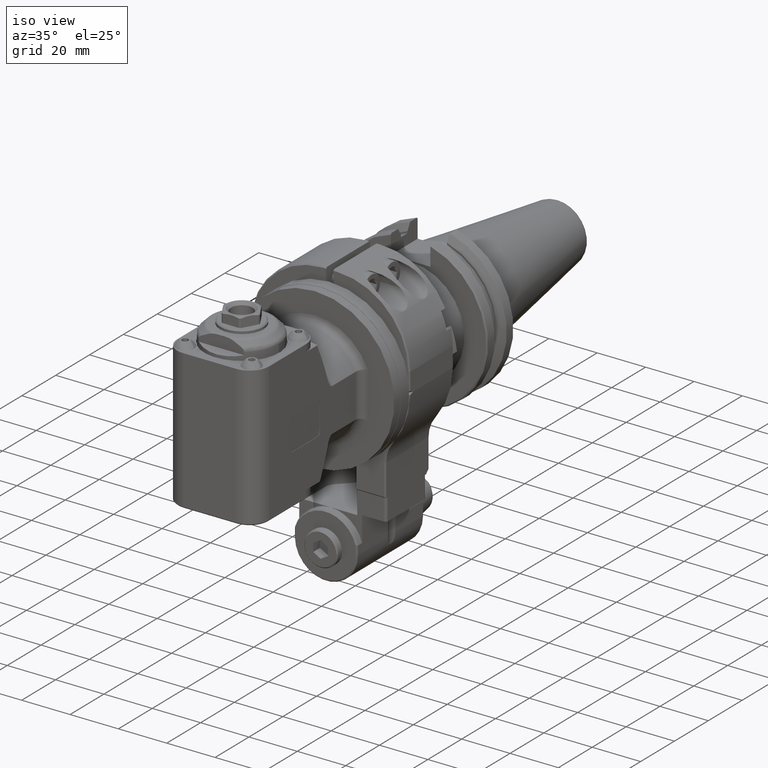
[diagram: clean part render]
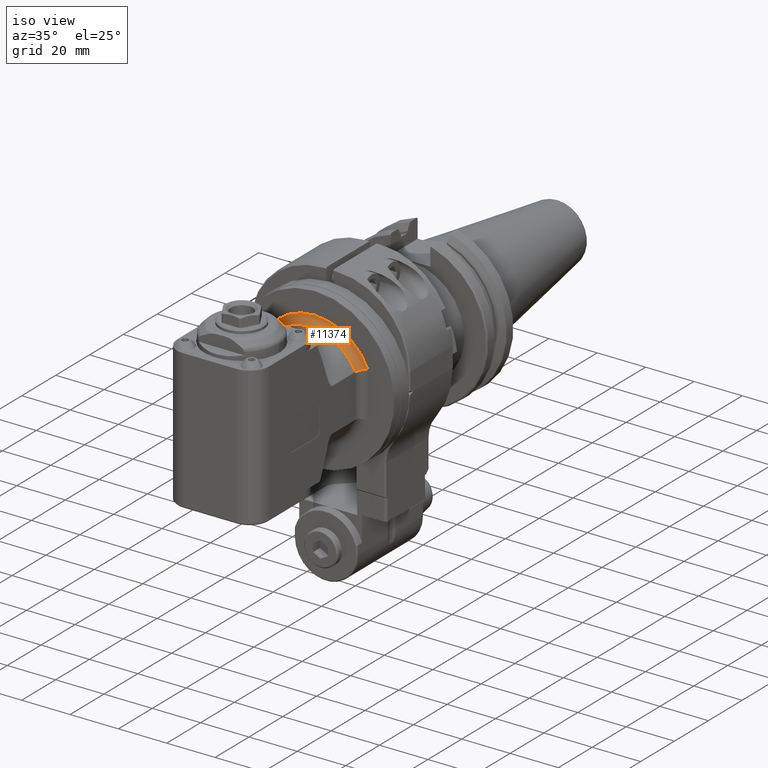
[diagram: same view with one face highlighted and labeled with its STEP entity id]
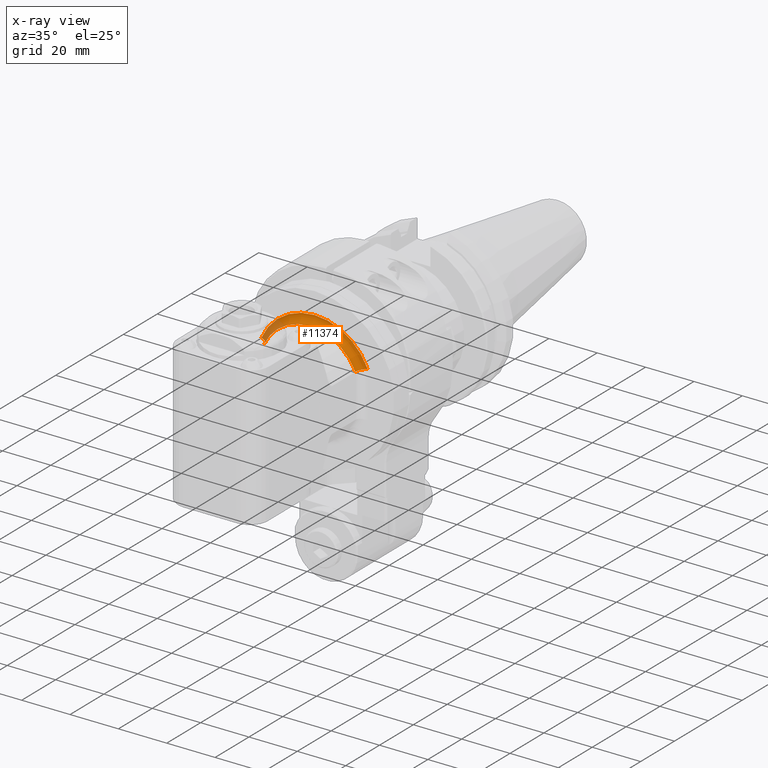
[diagram: x-ray of the same camera — body ghosted, the highlighted face saturated]
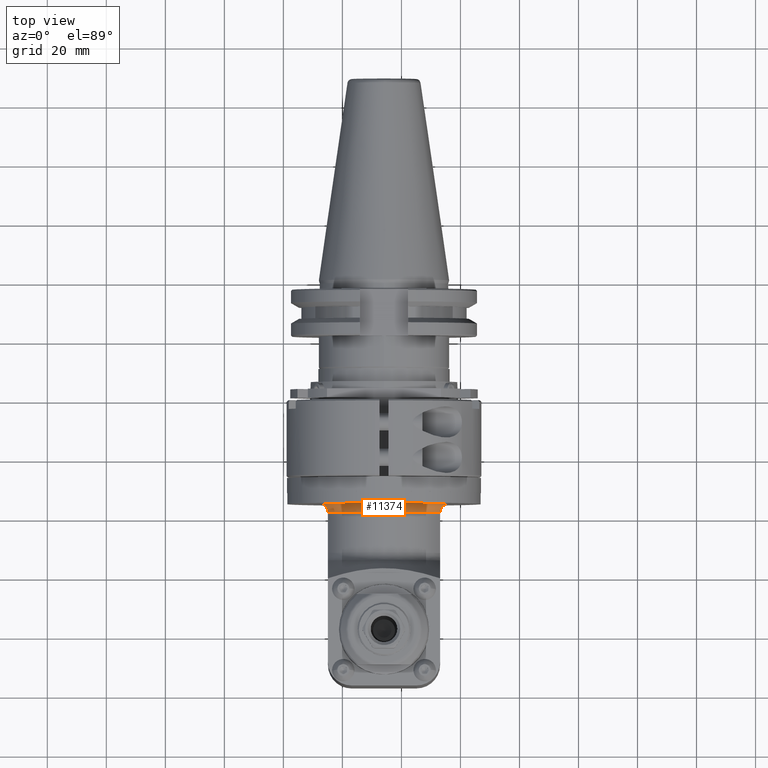
[diagram: same view with one face highlighted and labeled with its STEP entity id]
A machine part, iso view. The second image highlights one B-rep face of the part: STEP entity #11374.
The next image is the same camera in x-ray: the body ghosted, the highlighted face saturated — about 13% of this face is hidden behind the body in this view.
A second angle (top view) of the same face is appended — the face is thin or edge-on in the first view.
In plain terms, the highlighted toroidal blend (fillet) surface has major radius 24 mm and minor (blend) radius 3 mm.
Its self-contained STEP definition (entity closure, byte-faithful):
#308=TOROIDAL_SURFACE('',#12221,24.,3.);
#330=B_SPLINE_CURVE_WITH_KNOTS('',3,(#17120,#17121,#17122,#17123,#17124,
#17125,#17126,#17127,#17128,#17129,#17130,#17131,#17132,#17133),
 .UNSPECIFIED.,.F.,.F.,(4,2,2,2,2,2,4),(-0.955617137732308,-0.954796785713743,
-0.89078708537259,-0.826855829906088,-0.707820558452577,-0.591691887726395,
-0.477534127361),.UNSPECIFIED.);
#340=B_SPLINE_CURVE_WITH_KNOTS('',3,(#17426,#17427,#17428,#17429,#17430,
#17431,#17432,#17433,#17434,#17435,#17436,#17437,#17438,#17439),
 .UNSPECIFIED.,.F.,.F.,(4,2,2,2,2,2,4),(-0.000820248882293716,9.00408220205762E-15,
0.064001652922068,0.127924870831387,0.24694517694261,0.363059247749931,
0.477202655978212),.UNSPECIFIED.);
#2588=FACE_OUTER_BOUND('',#3326,.T.);
#3326=EDGE_LOOP('',(#7793,#7794,#7795,#7796));
#4143=CIRCLE('',#12154,24.);
#4177=CIRCLE('',#12220,21.);
#4771=VERTEX_POINT('',#17111);
#4773=VERTEX_POINT('',#17115);
#4774=VERTEX_POINT('',#17119);
#4794=VERTEX_POINT('',#17267);
#5897=EDGE_CURVE('',#4773,#4771,#4143,.T.);
#5898=EDGE_CURVE('',#4771,#4774,#330,.T.);
#5997=EDGE_CURVE('',#4794,#4774,#4177,.T.);
#5998=EDGE_CURVE('',#4773,#4794,#340,.T.);
#7793=ORIENTED_EDGE('',*,*,#5997,.T.);
#7794=ORIENTED_EDGE('',*,*,#5898,.F.);
#7795=ORIENTED_EDGE('',*,*,#5897,.F.);
#7796=ORIENTED_EDGE('',*,*,#5998,.T.);
#11374=ADVANCED_FACE('',(#2588),#308,.F.);
#12154=AXIS2_PLACEMENT_3D('',#17117,#13536,#13537);
#12220=AXIS2_PLACEMENT_3D('',#17424,#13717,#13718);
#12221=AXIS2_PLACEMENT_3D('',#17425,#13719,#13720);
#13536=DIRECTION('center_axis',(-1.,0.,0.));
#13537=DIRECTION('ref_axis',(0.,-0.399652626942692,-0.916666666666682));
#13717=DIRECTION('center_axis',(-1.,0.,0.));
#13718=DIRECTION('ref_axis',(0.,-1.,0.));
#13719=DIRECTION('center_axis',(-1.,0.,0.));
#13720=DIRECTION('ref_axis',(0.,-1.,-1.22464679914735E-16));
#17111=CARTESIAN_POINT('',(65.,-9.591663046625,22.));
#17115=CARTESIAN_POINT('',(65.,-9.591663046625,-22.));
#17117=CARTESIAN_POINT('Origin',(65.,0.,0.));
#17119=CARTESIAN_POINT('',(68.,-8.944271909999,19.));
#17120=CARTESIAN_POINT('Ctrl Pts',(65.,-9.59166304662542,21.9999999999999));
#17121=CARTESIAN_POINT('Ctrl Pts',(65.,-9.59110493795212,21.9973234048311));
#17122=CARTESIAN_POINT('Ctrl Pts',(65.0000035820808,-9.59054678281627,21.9946468204355));
#17123=CARTESIAN_POINT('Ctrl Pts',(65.0005697382876,-9.54643383639069,21.7831254944383));
#17124=CARTESIAN_POINT('Ctrl Pts',(65.0229354081196,-9.50270241681941,21.5748719990034));
#17125=CARTESIAN_POINT('Ctrl Pts',(65.1105440785623,-9.41637882066505,21.166582359225));
#17126=CARTESIAN_POINT('Ctrl Pts',(65.1755345999394,-9.37398267143598,20.9674692990624));
#17127=CARTESIAN_POINT('Ctrl Pts',(65.4195895211638,-9.25689078160673,20.4210559552338));
#17128=CARTESIAN_POINT('Ctrl Pts',(65.6466418635812,-9.18682487518341,20.0985595376261));
#17129=CARTESIAN_POINT('Ctrl Pts',(66.2075072142433,-9.06972871978934,19.5641588465987));
#17130=CARTESIAN_POINT('Ctrl Pts',(66.5334763728915,-9.02327979825419,19.354643722854));
#17131=CARTESIAN_POINT('Ctrl Pts',(67.2438321251294,-8.9604636059221,19.0722345944293));
#17132=CARTESIAN_POINT('Ctrl Pts',(67.6198583464039,-8.94427190999916,19.));
#17133=CARTESIAN_POINT('Ctrl Pts',(68.,-8.94427190999916,19.));
#17267=CARTESIAN_POINT('',(68.,-8.944271909999,-19.));
#17424=CARTESIAN_POINT('Origin',(68.,0.,0.));
#17425=CARTESIAN_POINT('Origin',(68.,0.,0.));
#17426=CARTESIAN_POINT('Ctrl Pts',(65.,-9.59166304662542,-21.9999999999999));
#17427=CARTESIAN_POINT('Ctrl Pts',(65.,-9.59110493795216,-21.9973234048313));
#17428=CARTESIAN_POINT('Ctrl Pts',(65.0000035820808,-9.59054678281617,-21.9946468204353));
#17429=CARTESIAN_POINT('Ctrl Pts',(65.0005697382876,-9.54643383639135,-21.7831254944348));
#17430=CARTESIAN_POINT('Ctrl Pts',(65.0229354081212,-9.50270241681596,-21.5748719989873));
#17431=CARTESIAN_POINT('Ctrl Pts',(65.1105440785712,-9.41637882065801,-21.166582359192));
#17432=CARTESIAN_POINT('Ctrl Pts',(65.1755345999536,-9.37398267142745,-20.967469299022));
#17433=CARTESIAN_POINT('Ctrl Pts',(65.4195895211907,-9.25689078159729,-20.4210559551899));
#17434=CARTESIAN_POINT('Ctrl Pts',(65.6466418636133,-9.18682487517473,-20.0985595375865));
#17435=CARTESIAN_POINT('Ctrl Pts',(66.207507214284,-9.06972871978272,-19.5641588465689));
#17436=CARTESIAN_POINT('Ctrl Pts',(66.5334763729355,-9.0232797982488,-19.3546437228296));
#17437=CARTESIAN_POINT('Ctrl Pts',(67.2438321251626,-8.96046360592066,-19.0722345944229));
#17438=CARTESIAN_POINT('Ctrl Pts',(67.6198583464209,-8.94427190999916,-19.));
#17439=CARTESIAN_POINT('Ctrl Pts',(68.,-8.94427190999916,-19.));